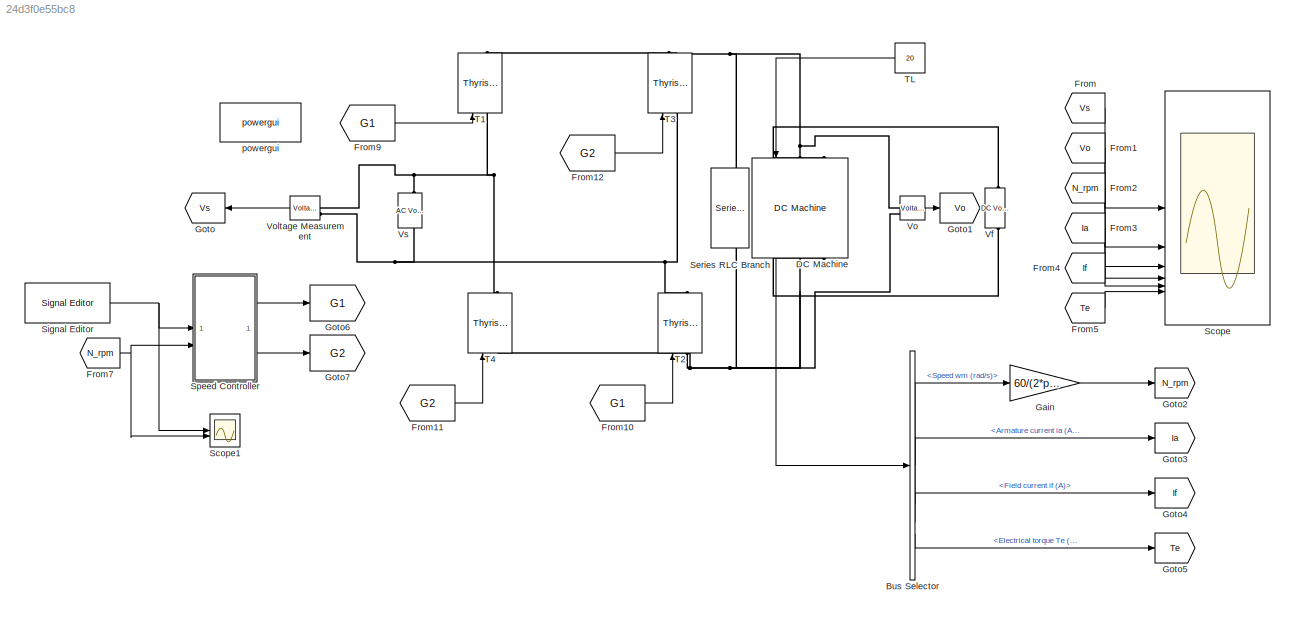
MODEL slx_24d3f0e55bc8
KIND model
CONFIG AbsTol = auto
CONFIG EnableMultiTasking = off
CONFIG FixedStep = auto
CONFIG InitFcn = t = 1e-3;
CONFIG MaxStep = auto
CONFIG MinStep = auto
CONFIG RelTol = 1e-3
CONFIG SampleTimeConstraint = Unconstrained
CONFIG SolverName = VariableStepAuto
CONFIG StartTime = 0.0
CONFIG StopTime = 5
BLOCK [BusSelector] Bus Selector
  OutputSignals = Speed wm (rad/s),Armature current ia (A),Field current if (A),Electrical torque Te (n m)
BLOCK [Reference] DC Machine  REF=spsDCMachineLib/DC Machine
  LibrarySourceBlock = sps_lib/Electrical Machines/DC Machine
  NameLocation = left
  SourceBlock = spsDCMachineLib/DC Machine
  SourceType = DC machine
BLOCK [From] From
  GotoTag = Vs
  NameLocation = top
  TagVisibility = global
BLOCK [From] From1
  GotoTag = Vo
  TagVisibility = global
BLOCK [From] From10
  GotoTag = G1
  TagVisibility = global
BLOCK [From] From11
  GotoTag = G2
  TagVisibility = global
BLOCK [From] From12
  GotoTag = G2
  TagVisibility = global
BLOCK [From] From2
  GotoTag = N_rpm
  TagVisibility = global
BLOCK [From] From3
  GotoTag = Ia
  TagVisibility = global
BLOCK [From] From4
  GotoTag = If
  TagVisibility = global
BLOCK [From] From5
  GotoTag = Te
  TagVisibility = global
BLOCK [From] From7
  GotoTag = N_rpm
  TagVisibility = global
BLOCK [From] From9
  GotoTag = G1
  TagVisibility = global
BLOCK [Gain] Gain
  Gain = 60/(2*pi)
BLOCK [Goto] Goto
  GotoTag = Vs
  NameLocation = top
  TagVisibility = global
BLOCK [Goto] Goto1
  GotoTag = Vo
  TagVisibility = global
BLOCK [Goto] Goto2
  GotoTag = N_rpm
  TagVisibility = global
BLOCK [Goto] Goto3
  GotoTag = Ia
  TagVisibility = global
BLOCK [Goto] Goto4
  GotoTag = If
  TagVisibility = global
BLOCK [Goto] Goto5
  GotoTag = Te
  TagVisibility = global
BLOCK [Goto] Goto6
  GotoTag = G1
  TagVisibility = global
BLOCK [Goto] Goto7
  GotoTag = G2
  TagVisibility = global
BLOCK [Scope] Scope
  Floating = off
  NumInputPorts = 6
  ScopeSpecificationString = Simulink.scopes.TimeScopeBlockCfg('CurrentConfiguration', extmgr.ConfigurationSet(extmgr.Configuration('Core','General UI',true,'FigureColor',[1 1 1]),extmgr.Configuration('Core','Source UI',true),extmgr.Configuration('Sources','WiredSimulink',true),extmgr.Configuration('Visuals','Time Domain',true,'SerializedDisplays',{struct('MinYLimReal','-406.5864','MaxYLimReal','406.5864','YLabelReal','','Min...<+5189ch>
BLOCK [Scope] Scope1
  Floating = off
  NumInputPorts = 2
  ScopeSpecificationString = Simulink.scopes.TimeScopeBlockCfg('CurrentConfiguration', extmgr.ConfigurationSet(extmgr.Configuration('Core','General UI',true,'FigureColor',[1 1 1]),extmgr.Configuration('Core','Source UI',true),extmgr.Configuration('Sources','WiredSimulink',true,'DataLoggingVariableName','ScopeData1'),extmgr.Configuration('Visuals','Time Domain',true,'SerializedDisplays',{struct('MinYLimReal','-199.60146','MaxY...<+1585ch>
BLOCK [Reference] Series RLC Branch  REF=spsSeriesRLCBranchLib/Series RLC Branch
  LibrarySourceBlock = sps_lib/Passives/Series RLC Branch
  NameLocation = left
  SourceBlock = spsSeriesRLCBranchLib/Series RLC Branch
  SourceType = Series RLC Branch
BLOCK [Reference] Signal Editor  REF=SignalEditorBlockLib/Signal Editor
  LibrarySourceBlock = simulink/Sources/Signal Editor
  SourceBlock = SignalEditorBlockLib/Signal Editor
  SourceType = SignalEditor
  UserDataPersistent = on
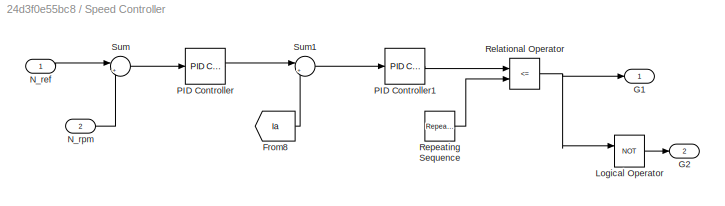
BLOCK [SubSystem] Speed Controller
BLOCK [From] Speed Controller/From8
  GotoTag = Ia
  TagVisibility = global
BLOCK [Outport] Speed Controller/G1
BLOCK [Outport] Speed Controller/G2
  Port = 2
BLOCK [Logic] Speed Controller/Logical Operator
  AllPortsSameDT = off
  Operator = NOT
  OutDataTypeStr = boolean
BLOCK [Inport] Speed Controller/N_ref
BLOCK [Inport] Speed Controller/N_rpm
  Port = 2
BLOCK [Reference] Speed Controller/PID Controller  REF=slpidlib/PID Controller
  SourceBlock = slpidlib/PID Controller
  SourceType = PID 1dof
BLOCK [Reference] Speed Controller/PID Controller1  REF=slpidlib/PID Controller
  SourceBlock = slpidlib/PID Controller
  SourceType = PID 1dof
BLOCK [RelationalOperator] Speed Controller/Relational Operator
  InputSameDT = off
  Operator = <=
  OutDataTypeStr = boolean
  RndMeth = Simplest
BLOCK [Reference] Speed Controller/Repeating Sequence  REF=simulink/Sources/Repeating
Sequence
  SourceBlock = simulink/Sources/Repeating\nSequence
  SourceType = Repeating table
BLOCK [Sum] Speed Controller/Sum
  Inputs = |+-
BLOCK [Sum] Speed Controller/Sum1
  Inputs = |+-
BLOCK [Reference] T1  REF=spsThyristorLib/Thyristor
  LibrarySourceBlock = sps_lib/Power Electronics/Thyristor
  NameLocation = right
  SourceBlock = spsThyristorLib/Thyristor
  SourceType = Thyristor
BLOCK [Reference] T2  REF=spsThyristorLib/Thyristor
  LibrarySourceBlock = sps_lib/Power Electronics/Thyristor
  NameLocation = right
  SourceBlock = spsThyristorLib/Thyristor
  SourceType = Thyristor
BLOCK [Reference] T3  REF=spsThyristorLib/Thyristor
  LibrarySourceBlock = sps_lib/Power Electronics/Thyristor
  NameLocation = right
  SourceBlock = spsThyristorLib/Thyristor
  SourceType = Thyristor
BLOCK [Reference] T4  REF=spsThyristorLib/Thyristor
  LibrarySourceBlock = sps_lib/Power Electronics/Thyristor
  NameLocation = right
  SourceBlock = spsThyristorLib/Thyristor
  SourceType = Thyristor
BLOCK [Constant] TL
  NameLocation = top
  Value = 20
BLOCK [Reference] Vf  REF=spsDCVoltageSourceLib/DC Voltage Source
  LibrarySourceBlock = sps_lib/Sources/DC Voltage Source
  NameLocation = right
  SourceBlock = spsDCVoltageSourceLib/DC Voltage Source
  SourceType = DC Voltage Source
BLOCK [Reference] Vo  REF=spsVoltageMeasurementLib/Voltage Measurement
  LibrarySourceBlock = sps_lib/Sensors and Measurements/Voltage Measurement
  SourceBlock = spsVoltageMeasurementLib/Voltage Measurement
  SourceType = Voltage Measurement
  UserDataPersistent = on
BLOCK [Reference] Voltage Measurement  REF=spsVoltageMeasurementLib/Voltage Measurement
  LibrarySourceBlock = sps_lib/Sensors and Measurements/Voltage Measurement
  NameLocation = top
  SourceBlock = spsVoltageMeasurementLib/Voltage Measurement
  SourceType = Voltage Measurement
  UserDataPersistent = on
BLOCK [Reference] Vs  REF=spsACVoltageSourceLib/AC Voltage Source
  LibrarySourceBlock = sps_lib/Sources/AC Voltage Source
  NameLocation = right
  SourceBlock = spsACVoltageSourceLib/AC Voltage Source
  SourceType = AC Voltage Source
BLOCK [Reference] powergui  REF=sps_lib/powergui
  LibrarySourceBlock = sps_lib/powergui
  Priority = 1
  SourceBlock = sps_lib/powergui
  SourceType = PSB option menu block
LINE Bus Selector:1 -> Gain:1
LINE Bus Selector:2 -> Goto3:1
LINE Bus Selector:3 -> Goto4:1
LINE Bus Selector:4 -> Goto5:1
LINE DC Machine:1 -> Bus Selector:1
LINE From10:1 -> T2:1
LINE From11:1 -> T4:1
LINE From12:1 -> T3:1
LINE From1:1 -> Scope:2
LINE From2:1 -> Scope:3
LINE From3:1 -> Scope:4
LINE From4:1 -> Scope:5
LINE From5:1 -> Scope:6
NET From7:1 -> Scope1:2, Speed Controller:2
LINE From9:1 -> T1:1
LINE From:1 -> Scope:1
LINE Gain:1 -> Goto2:1
NET Signal Editor:1 -> Scope1:1, Speed Controller:1
LINE Speed Controller/From8:1 -> Speed Controller/Sum1:2
LINE Speed Controller/Logical Operator:1 -> Speed Controller/G2:1
LINE Speed Controller/N_ref:1 -> Speed Controller/Sum:1
LINE Speed Controller/N_rpm:1 -> Speed Controller/Sum:2
LINE Speed Controller/PID Controller1:1 -> Speed Controller/Relational Operator:1
LINE Speed Controller/PID Controller:1 -> Speed Controller/Sum1:1
NET Speed Controller/Relational Operator:1 -> Speed Controller/G1:1, Speed Controller/Logical Operator:1
LINE Speed Controller/Repeating Sequence:1 -> Speed Controller/Relational Operator:2
LINE Speed Controller/Sum1:1 -> Speed Controller/PID Controller1:1
LINE Speed Controller/Sum:1 -> Speed Controller/PID Controller:1
LINE Speed Controller:1 -> Goto6:1
LINE Speed Controller:2 -> Goto7:1
LINE TL:1 -> DC Machine:1
LINE Vo:1 -> Goto1:1
LINE Voltage Measurement:1 -> Goto:1
PNET net1: DC Machine:LConn1 -- Series RLC Branch:LConn1 -- T1:RConn1 -- T3:RConn1 -- Vo:LConn1
PLINE DC Machine:LConn2 -- Vf:RConn1
PNET net2: DC Machine:RConn1 -- Series RLC Branch:RConn1 -- T2:LConn1 -- T4:LConn1 -- Vo:LConn2
PLINE DC Machine:RConn2 -- Vf:LConn1
PNET net3: T1:LConn1 -- T4:RConn1 -- Voltage Measurement:LConn1 -- Vs:RConn1
PNET net4: T2:RConn1 -- T3:LConn1 -- Voltage Measurement:LConn2 -- Vs:LConn1
note: NET lines group one-source signal fan-out (src -> all destinations, sorted); 1:1 wires keep LINE; PNET lines group multi-terminal physical nets as a canonical sorted terminal list (undirected conserving connections); 2-terminal nets keep the pairwise PLINE form
